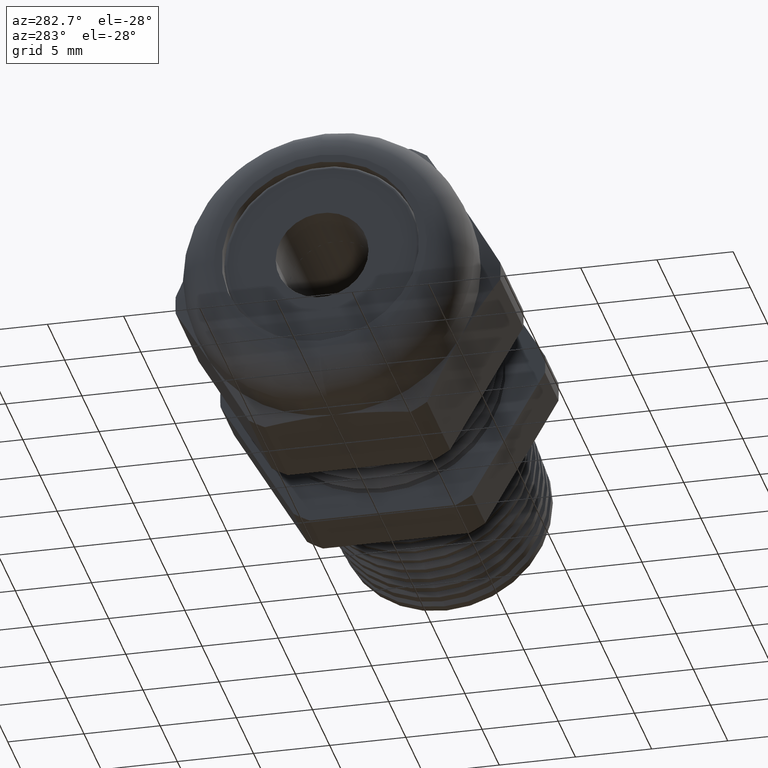
[diagram: clean part render]
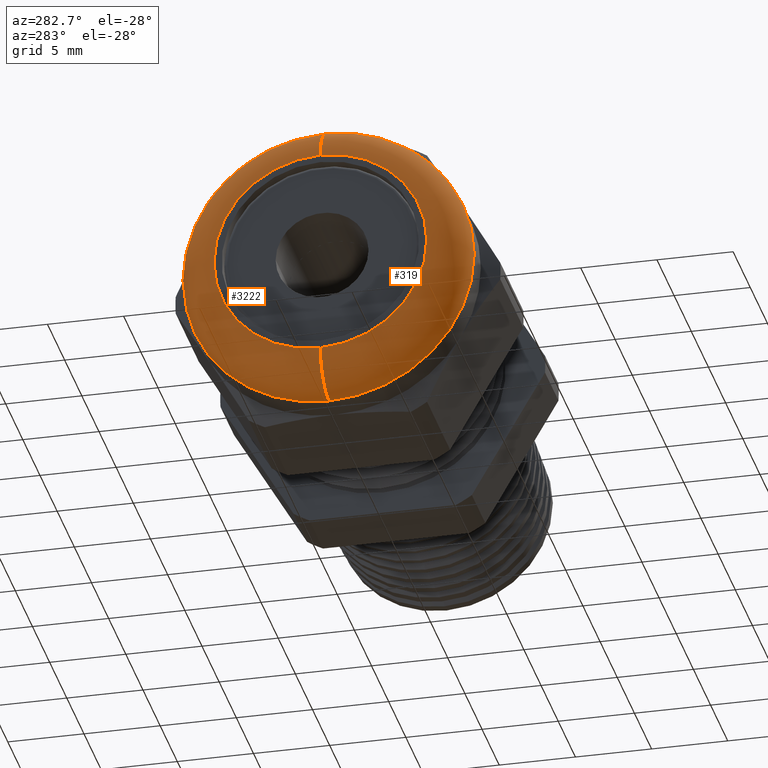
[diagram: same view with one multi-face feature highlighted, each face labeled with its STEP entity id]
A machine part, auxiliary view. The highlighted faces form ONE feature: a constant-radius fillet chain: 2 tangent blend faces with common blend radius 2.54 mm. The faces share edges in the B-rep.
Their STEP definitions:
[1] entity #319 (Torus):
#254 = EDGE_CURVE ( 'NONE', #3357, #3367, #3181, .T. ) ;
#319 = ADVANCED_FACE ( 'NONE', ( #2736 ), #2732, .T. ) ;
#331 = ORIENTED_EDGE ( 'NONE', *, *, #254, .F. ) ;
#336 = ORIENTED_EDGE ( 'NONE', *, *, #3806, .F. ) ;
#337 = EDGE_LOOP ( 'NONE', ( #346, #336, #345, #331 ) ) ;
#345 = ORIENTED_EDGE ( 'NONE', *, *, #3369, .T. ) ;
#346 = ORIENTED_EDGE ( 'NONE', *, *, #3214, .F. ) ;
#1173 = DIRECTION ( 'NONE',  ( 0.0000000000000000000, 1.224606353822377800E-016, 1.000000000000000000 ) ) ;
#1174 = DIRECTION ( 'NONE',  ( 0.0000000000000000000, 1.000000000000000000, -1.224606353822377300E-016 ) ) ;
#1175 = CARTESIAN_POINT ( 'NONE',  ( -0.7700000000000000200, 3.367667473011535100E-017, 0.2749999999999998000 ) ) ;
#1176 = AXIS2_PLACEMENT_3D ( 'NONE', #1175, #1174, #1173 ) ;
#1177 = CIRCLE ( 'NONE', #1176, 0.1000000000000000200 ) ;
#1183 = CARTESIAN_POINT ( 'NONE',  ( -0.8700000000000000000, 0.0000000000000000000, -0.2749999999999998000 ) ) ;
#1184 = CARTESIAN_POINT ( 'NONE',  ( -0.8700000000000000000, 3.979970649922724000E-017, 0.2749999999999998000 ) ) ;
#1385 = CARTESIAN_POINT ( 'NONE',  ( -0.7700000000000000200, 0.0000000000000000000, 0.3749999999999998300 ) ) ;
#1428 = DIRECTION ( 'NONE',  ( 0.0000000000000000000, 0.0000000000000000000, -1.000000000000000000 ) ) ;
#1429 = DIRECTION ( 'NONE',  ( 0.0000000000000000000, -1.000000000000000000, 0.0000000000000000000 ) ) ;
#1430 = CARTESIAN_POINT ( 'NONE',  ( -0.7700000000000000200, 0.0000000000000000000, -0.2749999999999998000 ) ) ;
#1431 = AXIS2_PLACEMENT_3D ( 'NONE', #1430, #1429, #1428 ) ;
#1432 = CIRCLE ( 'NONE', #1431, 0.1000000000000000200 ) ;
#1437 = CARTESIAN_POINT ( 'NONE',  ( -0.7700000000000000200, 4.592273826833912300E-017, -0.3749999999999998300 ) ) ;
#2234 = DIRECTION ( 'NONE',  ( 0.0000000000000000000, 0.0000000000000000000, -1.000000000000000000 ) ) ;
#2235 = DIRECTION ( 'NONE',  ( -1.000000000000000000, -0.0000000000000000000, -0.0000000000000000000 ) ) ;
#2236 = CARTESIAN_POINT ( 'NONE',  ( -0.8700000000000000000, 0.0000000000000000000, 0.0000000000000000000 ) ) ;
#2237 = AXIS2_PLACEMENT_3D ( 'NONE', #2236, #2235, #2234 ) ;
#2238 = CIRCLE ( 'NONE', #2237, 0.2749999999999998000 ) ;
#2731 = CARTESIAN_POINT ( 'NONE',  ( -0.7700000000000000200, 0.0000000000000000000, 0.0000000000000000000 ) ) ;
#2732 = TOROIDAL_SURFACE ( 'NONE', #2744, 0.2749999999999998000, 0.1000000000000000500 ) ;
#2736 = FACE_OUTER_BOUND ( 'NONE', #337, .T. ) ;
#2742 = DIRECTION ( 'NONE',  ( 0.0000000000000000000, 0.0000000000000000000, -1.000000000000000000 ) ) ;
#2743 = DIRECTION ( 'NONE',  ( 1.000000000000000000, 0.0000000000000000000, 0.0000000000000000000 ) ) ;
#2744 = AXIS2_PLACEMENT_3D ( 'NONE', #2731, #2743, #2742 ) ;
#3176 = DIRECTION ( 'NONE',  ( 0.0000000000000000000, 0.0000000000000000000, -1.000000000000000000 ) ) ;
#3178 = DIRECTION ( 'NONE',  ( 1.000000000000000000, 0.0000000000000000000, 0.0000000000000000000 ) ) ;
#3180 = AXIS2_PLACEMENT_3D ( 'NONE', #3186, #3178, #3176 ) ;
#3181 = CIRCLE ( 'NONE', #3180, 0.3749999999999998300 ) ;
#3186 = CARTESIAN_POINT ( 'NONE',  ( -0.7700000000000000200, 0.0000000000000000000, 0.0000000000000000000 ) ) ;
#3209 = VERTEX_POINT ( 'NONE', #1184 ) ;
#3210 = VERTEX_POINT ( 'NONE', #1183 ) ;
#3214 = EDGE_CURVE ( 'NONE', #3209, #3357, #1177, .T. ) ;
#3357 = VERTEX_POINT ( 'NONE', #1385 ) ;
#3367 = VERTEX_POINT ( 'NONE', #1437 ) ;
#3369 = EDGE_CURVE ( 'NONE', #3210, #3367, #1432, .T. ) ;
#3806 = EDGE_CURVE ( 'NONE', #3210, #3209, #2238, .T. ) ;
[2] entity #3222 (Torus):
#1158 = CARTESIAN_POINT ( 'NONE',  ( -0.7700000000000000200, 0.0000000000000000000, 0.0000000000000000000 ) ) ;
#1159 = AXIS2_PLACEMENT_3D ( 'NONE', #1158, #1222, #1221 ) ;
#1160 = TOROIDAL_SURFACE ( 'NONE', #1159, 0.2749999999999998000, 0.1000000000000000500 ) ;
#1161 = DIRECTION ( 'NONE',  ( 0.0000000000000000000, 0.0000000000000000000, -1.000000000000000000 ) ) ;
#1162 = DIRECTION ( 'NONE',  ( -1.000000000000000000, -0.0000000000000000000, -0.0000000000000000000 ) ) ;
#1163 = CARTESIAN_POINT ( 'NONE',  ( -0.8700000000000000000, 0.0000000000000000000, 0.0000000000000000000 ) ) ;
#1164 = AXIS2_PLACEMENT_3D ( 'NONE', #1163, #1162, #1161 ) ;
#1165 = CIRCLE ( 'NONE', #1164, 0.2749999999999998000 ) ;
#1166 = FACE_OUTER_BOUND ( 'NONE', #3221, .T. ) ;
#1173 = DIRECTION ( 'NONE',  ( 0.0000000000000000000, 1.224606353822377800E-016, 1.000000000000000000 ) ) ;
#1174 = DIRECTION ( 'NONE',  ( 0.0000000000000000000, 1.000000000000000000, -1.224606353822377300E-016 ) ) ;
#1175 = CARTESIAN_POINT ( 'NONE',  ( -0.7700000000000000200, 3.367667473011535100E-017, 0.2749999999999998000 ) ) ;
#1176 = AXIS2_PLACEMENT_3D ( 'NONE', #1175, #1174, #1173 ) ;
#1177 = CIRCLE ( 'NONE', #1176, 0.1000000000000000200 ) ;
#1183 = CARTESIAN_POINT ( 'NONE',  ( -0.8700000000000000000, 0.0000000000000000000, -0.2749999999999998000 ) ) ;
#1184 = CARTESIAN_POINT ( 'NONE',  ( -0.8700000000000000000, 3.979970649922724000E-017, 0.2749999999999998000 ) ) ;
#1221 = DIRECTION ( 'NONE',  ( 0.0000000000000000000, 0.0000000000000000000, -1.000000000000000000 ) ) ;
#1222 = DIRECTION ( 'NONE',  ( 1.000000000000000000, 0.0000000000000000000, 0.0000000000000000000 ) ) ;
#1385 = CARTESIAN_POINT ( 'NONE',  ( -0.7700000000000000200, 0.0000000000000000000, 0.3749999999999998300 ) ) ;
#1386 = DIRECTION ( 'NONE',  ( 0.0000000000000000000, 0.0000000000000000000, -1.000000000000000000 ) ) ;
#1387 = DIRECTION ( 'NONE',  ( 1.000000000000000000, 0.0000000000000000000, 0.0000000000000000000 ) ) ;
#1388 = CARTESIAN_POINT ( 'NONE',  ( -0.7700000000000000200, 0.0000000000000000000, 0.0000000000000000000 ) ) ;
#1389 = AXIS2_PLACEMENT_3D ( 'NONE', #1388, #1387, #1386 ) ;
#1390 = CIRCLE ( 'NONE', #1389, 0.3749999999999998300 ) ;
#1428 = DIRECTION ( 'NONE',  ( 0.0000000000000000000, 0.0000000000000000000, -1.000000000000000000 ) ) ;
#1429 = DIRECTION ( 'NONE',  ( 0.0000000000000000000, -1.000000000000000000, 0.0000000000000000000 ) ) ;
#1430 = CARTESIAN_POINT ( 'NONE',  ( -0.7700000000000000200, 0.0000000000000000000, -0.2749999999999998000 ) ) ;
#1431 = AXIS2_PLACEMENT_3D ( 'NONE', #1430, #1429, #1428 ) ;
#1432 = CIRCLE ( 'NONE', #1431, 0.1000000000000000200 ) ;
#1437 = CARTESIAN_POINT ( 'NONE',  ( -0.7700000000000000200, 4.592273826833912300E-017, -0.3749999999999998300 ) ) ;
#3209 = VERTEX_POINT ( 'NONE', #1184 ) ;
#3210 = VERTEX_POINT ( 'NONE', #1183 ) ;
#3211 = ORIENTED_EDGE ( 'NONE', *, *, #3214, .T. ) ;
#3214 = EDGE_CURVE ( 'NONE', #3209, #3357, #1177, .T. ) ;
#3219 = ORIENTED_EDGE ( 'NONE', *, *, #3220, .F. ) ;
#3220 = EDGE_CURVE ( 'NONE', #3209, #3210, #1165, .T. ) ;
#3221 = EDGE_LOOP ( 'NONE', ( #3219, #3211, #3379, #3359 ) ) ;
#3222 = ADVANCED_FACE ( 'NONE', ( #1166 ), #1160, .T. ) ;
#3356 = EDGE_CURVE ( 'NONE', #3367, #3357, #1390, .T. ) ;
#3357 = VERTEX_POINT ( 'NONE', #1385 ) ;
#3359 = ORIENTED_EDGE ( 'NONE', *, *, #3369, .F. ) ;
#3367 = VERTEX_POINT ( 'NONE', #1437 ) ;
#3369 = EDGE_CURVE ( 'NONE', #3210, #3367, #1432, .T. ) ;
#3379 = ORIENTED_EDGE ( 'NONE', *, *, #3356, .F. ) ;